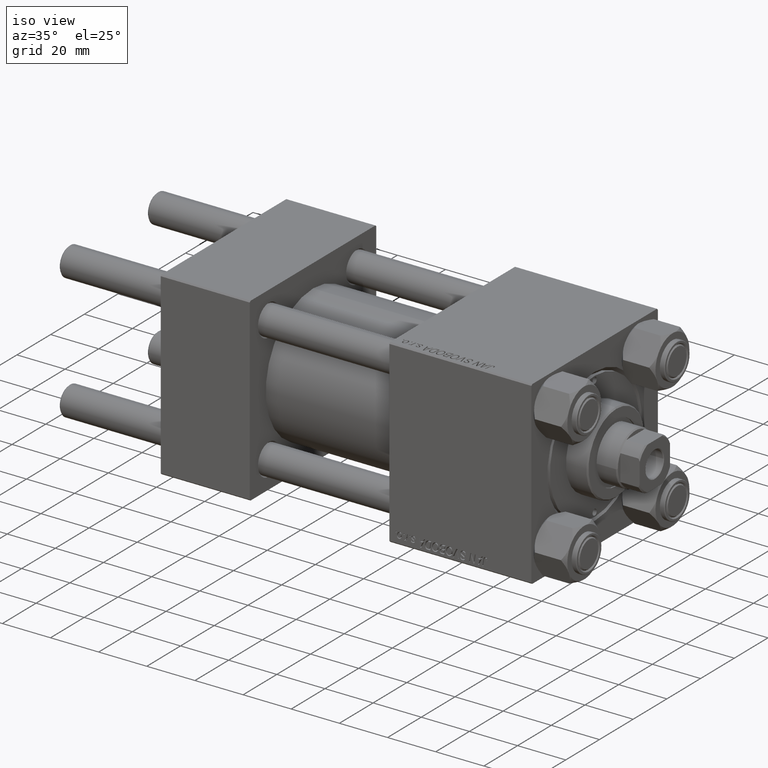
[diagram: clean part render]
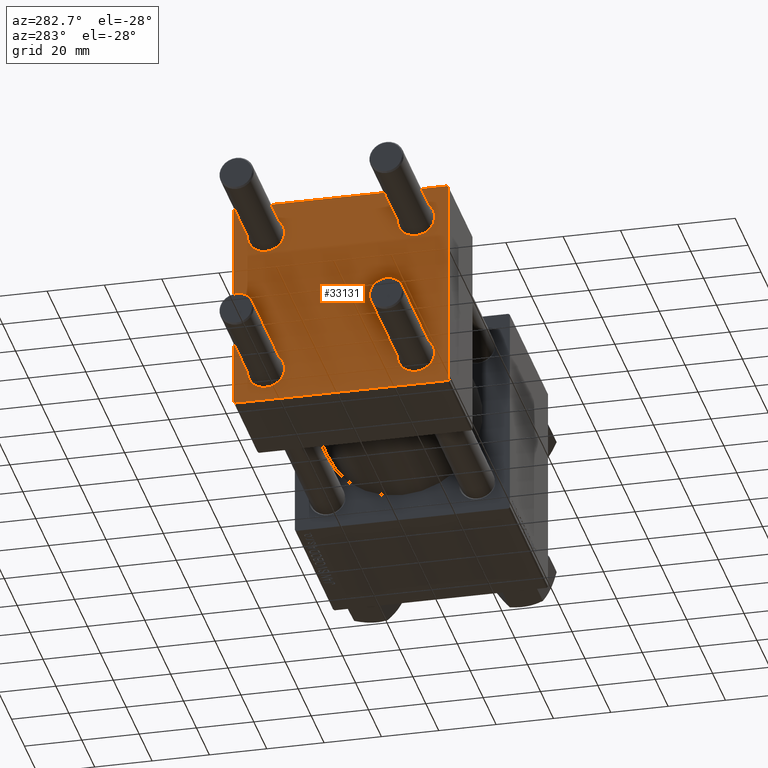
[diagram: tour spotlight — one face highlighted and labeled with its STEP entity id]
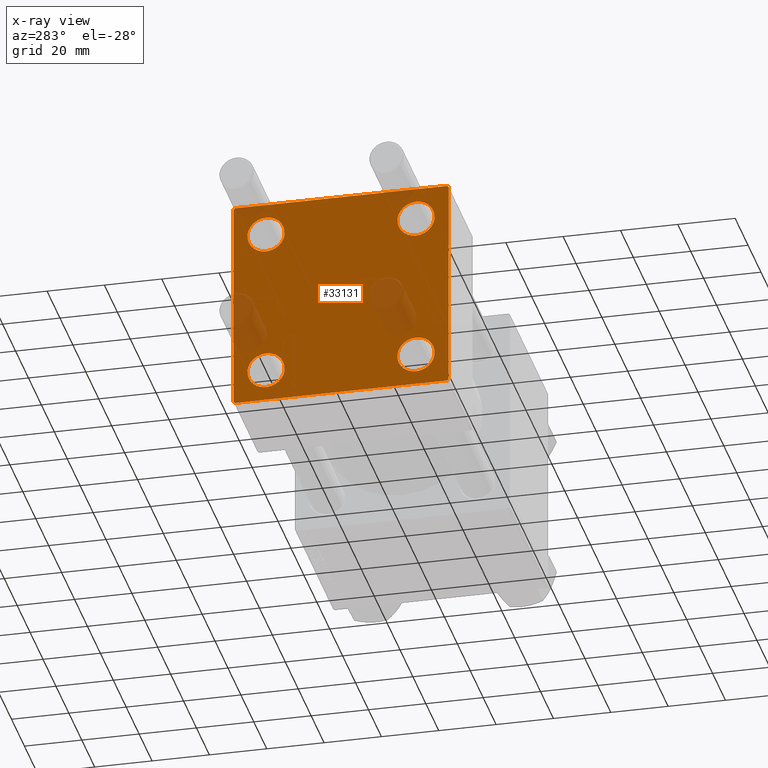
[diagram: x-ray of the same camera — body ghosted, this tour face saturated]
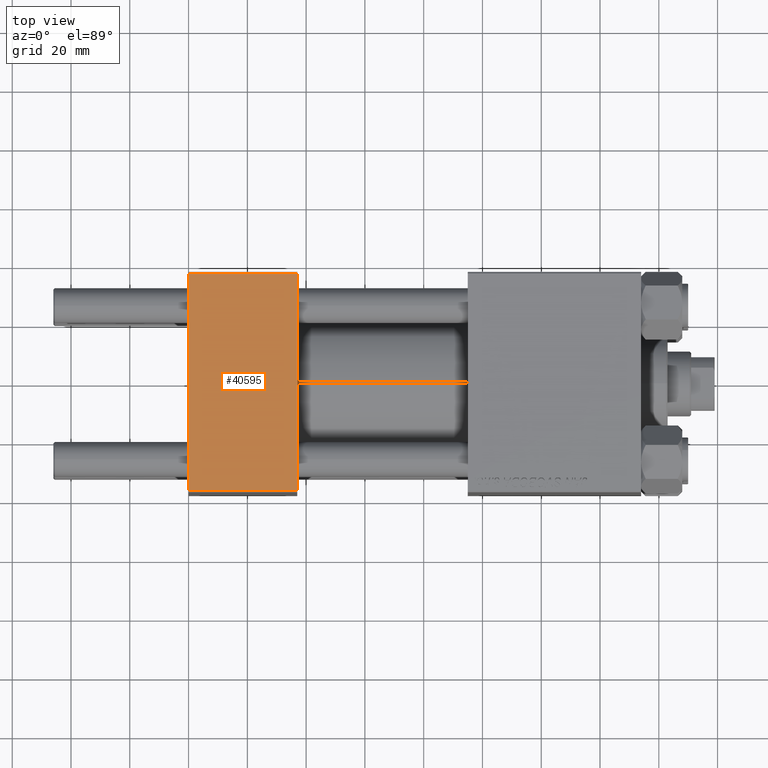
[diagram: tour spotlight — one face highlighted and labeled with its STEP entity id]
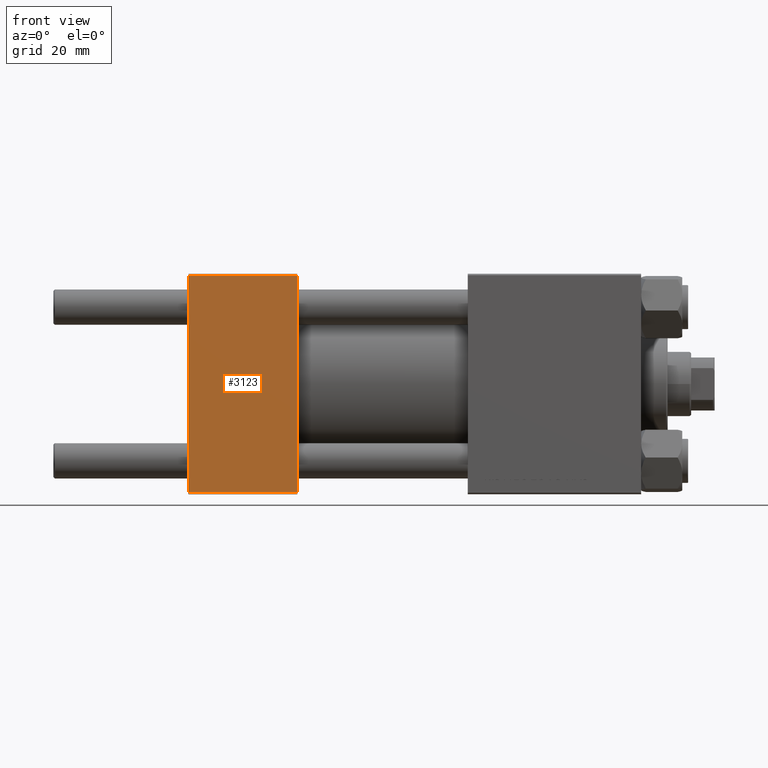
[diagram: tour spotlight — one face highlighted and labeled with its STEP entity id]
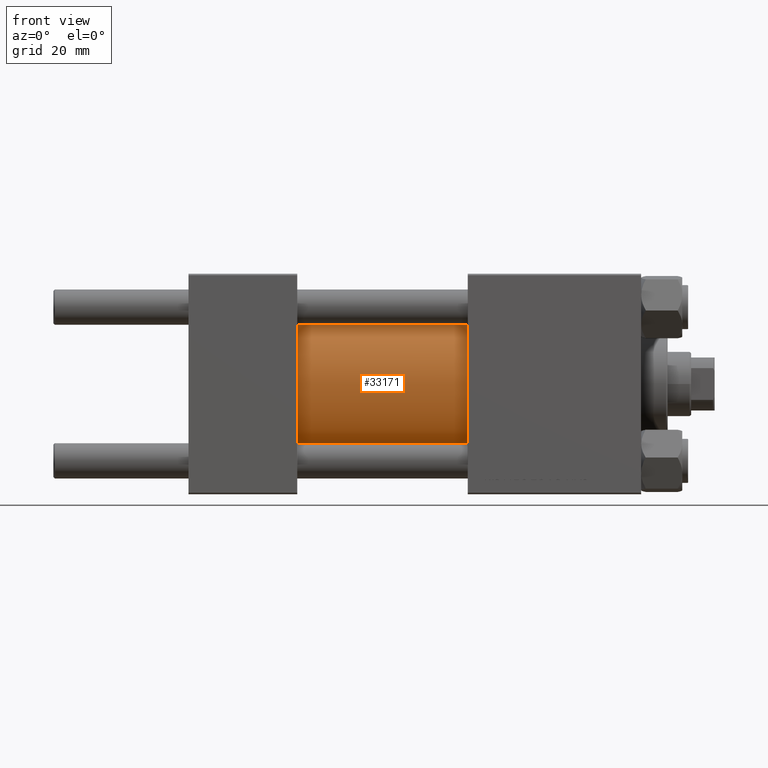
[diagram: tour spotlight — one face highlighted and labeled with its STEP entity id]
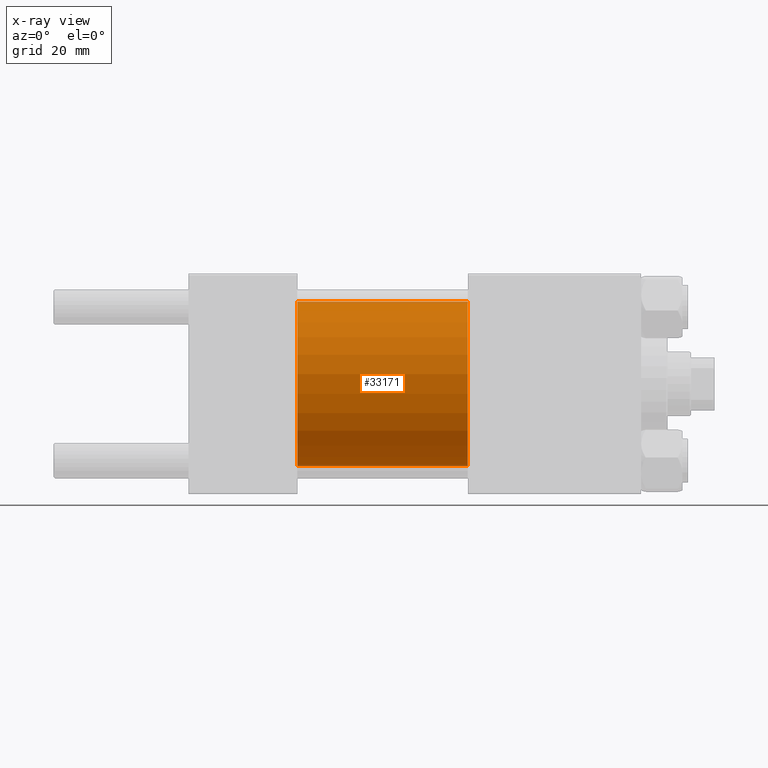
[diagram: x-ray of the same camera — body ghosted, this tour face saturated]
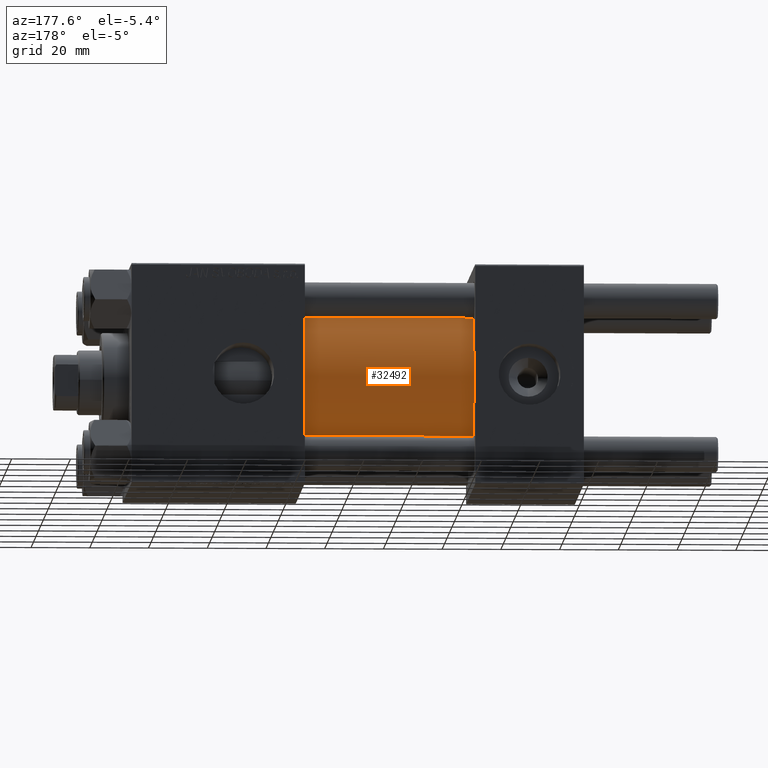
[diagram: tour spotlight — one face highlighted and labeled with its STEP entity id]
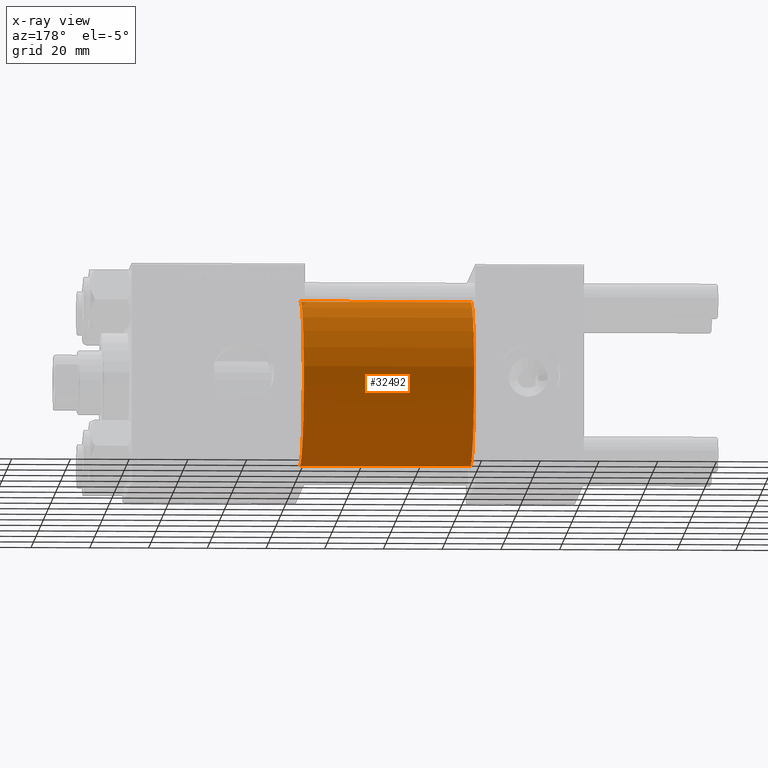
[diagram: x-ray of the same camera — body ghosted, this tour face saturated]
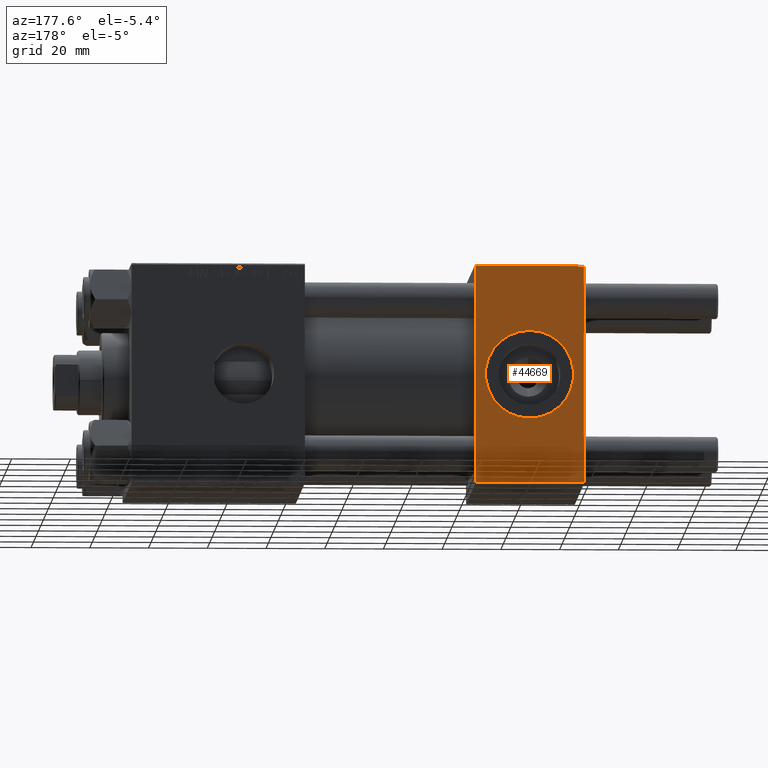
[diagram: tour spotlight — one face highlighted and labeled with its STEP entity id]
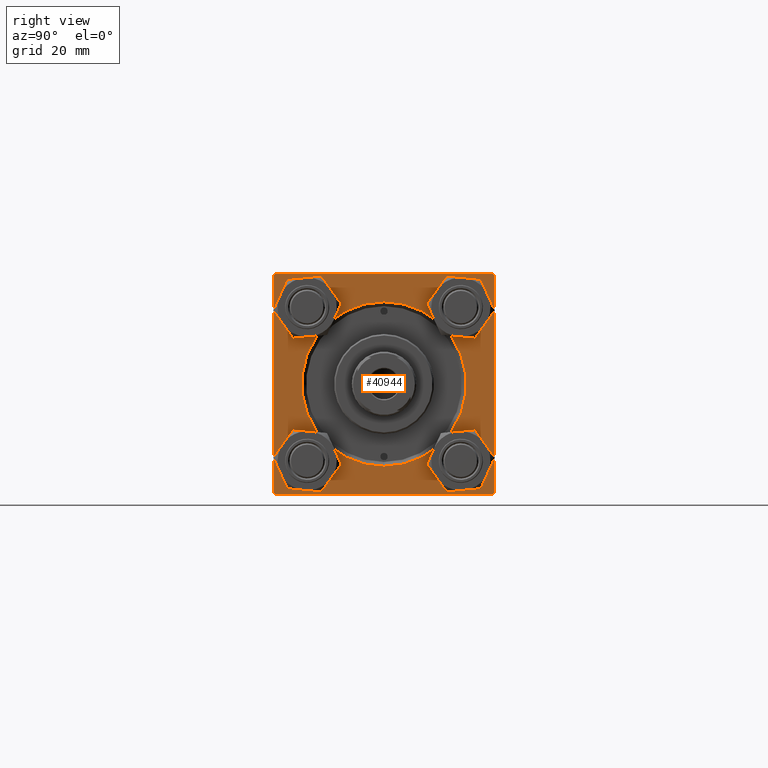
[diagram: tour spotlight — one face highlighted and labeled with its STEP entity id]
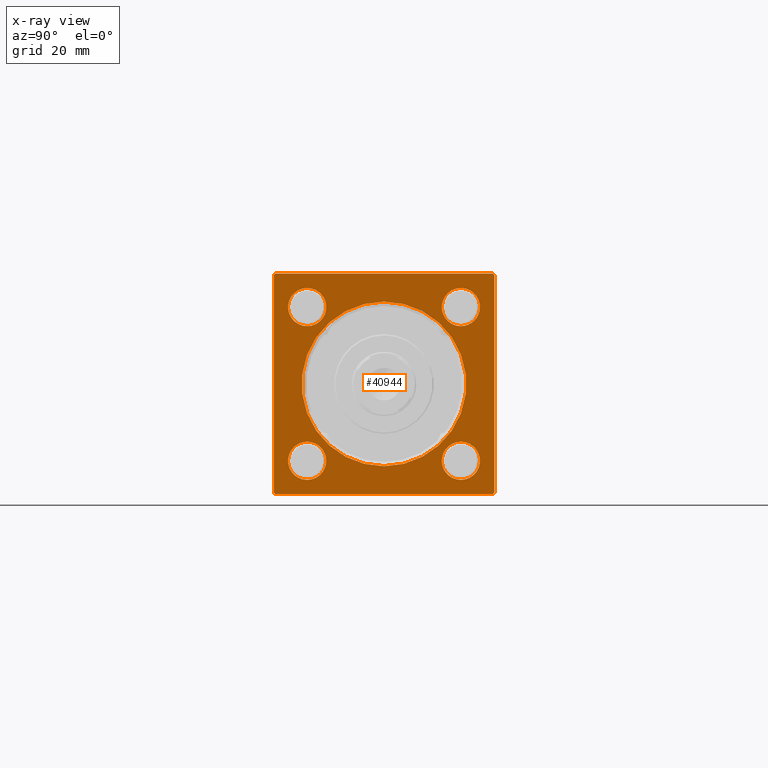
[diagram: x-ray of the same camera — body ghosted, this tour face saturated]
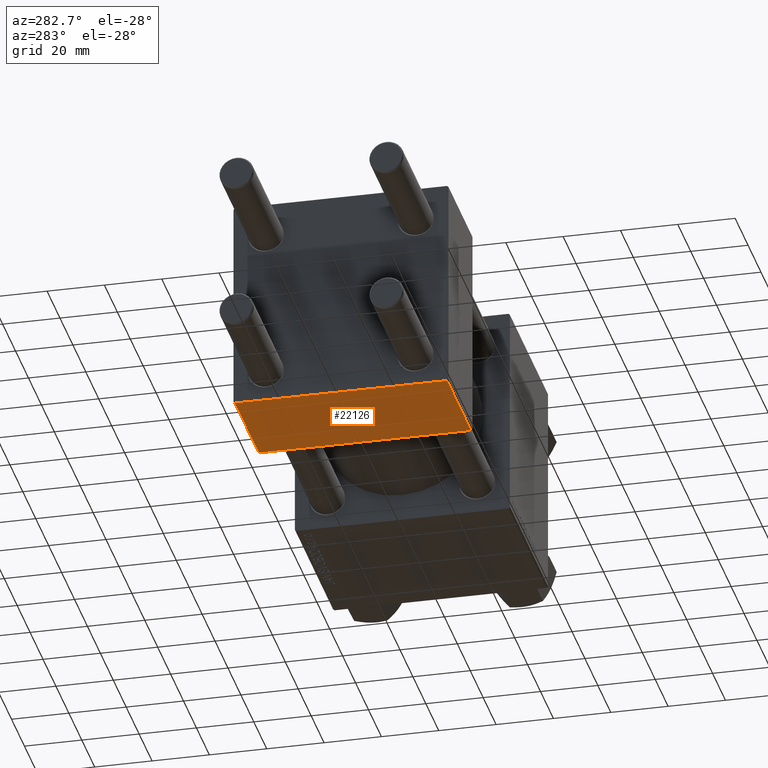
[diagram: tour spotlight — one face highlighted and labeled with its STEP entity id]
A machine part: a face-by-face anatomy tour. The part has 1141 B-rep faces; the first image is the clean iso view, then the 8 largest visible faces are spotlighted one at a time (largest first), each with its STEP entity span.

Face 1 — auxiliary view, entity #33131. An x-ray twin of the same camera follows (body ghosted, this face saturated) — the face is partly hidden behind the body. In plain terms, the highlighted planar face has unit normal (-1, 0, 0).
Definition (entity closure, byte-faithful):
#65 = CARTESIAN_POINT ( 'NONE',  ( 0.000000000000000000, -37.50000000000000000, -37.00000000000003553 ) ) ;
#173 = DIRECTION ( 'NONE',  ( -0.000000000000000000, 0.7071067811865474617, 0.7071067811865474617 ) ) ;
#293 = LINE ( 'NONE', #11463, #18064 ) ;
#297 = CARTESIAN_POINT ( 'NONE',  ( 0.000000000000000000, 26.14999999999999858, -26.15000000000000213 ) ) ;
#417 = ORIENTED_EDGE ( 'NONE', *, *, #34638, .T. ) ;
#548 = DIRECTION ( 'NONE',  ( 0.000000000000000000, 0.000000000000000000, 1.000000000000000000 ) ) ;
#692 = LINE ( 'NONE', #29905, #20252 ) ;
#707 = VERTEX_POINT ( 'NONE', #28216 ) ;
#1071 = ORIENTED_EDGE ( 'NONE', *, *, #13535, .T. ) ;
#1564 = CARTESIAN_POINT ( 'NONE',  ( 0.000000000000000000, 36.99999999999999289, 37.50000000000000000 ) ) ;
#1800 = ORIENTED_EDGE ( 'NONE', *, *, #8103, .T. ) ;
#2033 = CARTESIAN_POINT ( 'NONE',  ( 0.000000000000000000, -26.14999999999999147, 19.64999999999999147 ) ) ;
#2629 = EDGE_CURVE ( 'NONE', #42699, #20595, #15639, .T. ) ;
#2630 = DIRECTION ( 'NONE',  ( 0.000000000000000000, 0.000000000000000000, 1.000000000000000000 ) ) ;
#2894 = CARTESIAN_POINT ( 'NONE',  ( 0.000000000000000000, 37.49999999999999289, 37.00000000000000000 ) ) ;
#2962 = ORIENTED_EDGE ( 'NONE', *, *, #11185, .T. ) ;
#3562 = CARTESIAN_POINT ( 'NONE',  ( 0.000000000000000000, -26.14999999999999147, -26.15000000000000924 ) ) ;
#3616 = DIRECTION ( 'NONE',  ( 0.000000000000000000, -0.7071067811865524577, 0.7071067811865426878 ) ) ;
#3720 = LINE ( 'NONE', #34090, #47006 ) ;
#4748 = ORIENTED_EDGE ( 'NONE', *, *, #2629, .T. ) ;
#5118 = VERTEX_POINT ( 'NONE', #5332 ) ;
#5174 = CARTESIAN_POINT ( 'NONE',  ( 0.000000000000000000, -37.00000000000000711, 37.49999999999999289 ) ) ;
#5267 = DIRECTION ( 'NONE',  ( 1.000000000000000000, -0.000000000000000000, 0.000000000000000000 ) ) ;
#5332 = CARTESIAN_POINT ( 'NONE',  ( 0.000000000000000000, 36.99999999999997868, -37.50000000000000000 ) ) ;
#5455 = VERTEX_POINT ( 'NONE', #6288 ) ;
#5622 = CARTESIAN_POINT ( 'NONE',  ( 0.000000000000000000, 0.000000000000000000, 0.000000000000000000 ) ) ;
#5742 = DIRECTION ( 'NONE',  ( 0.000000000000000000, 0.7071067811865474617, -0.7071067811865474617 ) ) ;
#5883 = AXIS2_PLACEMENT_3D ( 'NONE', #38276, #34479, #11716 ) ;
#6288 = CARTESIAN_POINT ( 'NONE',  ( 0.000000000000000000, -26.14999999999999147, -32.65000000000002700 ) ) ;
#6425 = DIRECTION ( 'NONE',  ( 1.000000000000000000, -0.000000000000000000, 0.000000000000000000 ) ) ;
#7632 = CIRCLE ( 'NONE', #27848, 6.500000000000023093 ) ;
#7780 = DIRECTION ( 'NONE',  ( 0.000000000000000000, 0.000000000000000000, -1.000000000000000000 ) ) ;
#8015 = AXIS2_PLACEMENT_3D ( 'NONE', #297, #38279, #548 ) ;
#8103 = EDGE_CURVE ( 'NONE', #5118, #48887, #3720, .T. ) ;
#8224 = ORIENTED_EDGE ( 'NONE', *, *, #11249, .T. ) ;
#8371 = CIRCLE ( 'NONE', #31035, 6.500000000000023093 ) ;
#8563 = AXIS2_PLACEMENT_3D ( 'NONE', #48291, #5267, #43976 ) ;
#8759 = CARTESIAN_POINT ( 'NONE',  ( 0.000000000000000000, 37.49999999999999289, 37.50000000000000000 ) ) ;
#8923 = DIRECTION ( 'NONE',  ( -0.000000000000000000, 0.000000000000000000, 1.000000000000000000 ) ) ;
#9126 = ORIENTED_EDGE ( 'NONE', *, *, #40375, .T. ) ;
#9674 = DIRECTION ( 'NONE',  ( 0.000000000000000000, 0.000000000000000000, 1.000000000000000000 ) ) ;
#10194 = CARTESIAN_POINT ( 'NONE',  ( 0.000000000000000000, 26.14999999999999858, 26.15000000000000213 ) ) ;
#10260 = EDGE_LOOP ( 'NONE', ( #8224, #50051 ) ) ;
#11163 = DIRECTION ( 'NONE',  ( 0.000000000000000000, 0.000000000000000000, 1.000000000000000000 ) ) ;
#11185 = EDGE_CURVE ( 'NONE', #48887, #39481, #293, .T. ) ;
#11248 = VERTEX_POINT ( 'NONE', #26642 ) ;
#11249 = EDGE_CURVE ( 'NONE', #30567, #28918, #37439, .T. ) ;
#11463 = CARTESIAN_POINT ( 'NONE',  ( 0.000000000000000000, -37.24999999999975842, -37.25000000000027001 ) ) ;
#11716 = DIRECTION ( 'NONE',  ( 0.000000000000000000, 0.000000000000000000, 1.000000000000000000 ) ) ;
#13233 = VECTOR ( 'NONE', #50078, 1000.000000000000000 ) ;
#13535 = EDGE_CURVE ( 'NONE', #34894, #40268, #8371, .T. ) ;
#14255 = EDGE_CURVE ( 'NONE', #707, #5455, #14892, .T. ) ;
#14503 = CARTESIAN_POINT ( 'NONE',  ( 0.000000000000000000, 26.14999999999999858, 19.64999999999998437 ) ) ;
#14745 = DIRECTION ( 'NONE',  ( 0.000000000000000000, -1.000000000000000000, -9.251858538542971581E-17 ) ) ;
#14892 = CIRCLE ( 'NONE', #18934, 6.500000000000015987 ) ;
#14978 = DIRECTION ( 'NONE',  ( 1.000000000000000000, -0.000000000000000000, 0.000000000000000000 ) ) ;
#15639 = LINE ( 'NONE', #8759, #46011 ) ;
#15880 = CARTESIAN_POINT ( 'NONE',  ( 0.000000000000000000, 37.24999999999998579, -37.24999999999998579 ) ) ;
#16152 = EDGE_LOOP ( 'NONE', ( #4748, #9126, #1800, #2962, #48292, #20776, #44721, #21932 ) ) ;
#16387 = CARTESIAN_POINT ( 'NONE',  ( -0.000000000000000000, -37.25000000000000000, 37.25000000000000000 ) ) ;
#16549 = FACE_BOUND ( 'NONE', #18717, .T. ) ;
#17844 = EDGE_CURVE ( 'NONE', #11248, #39481, #34876, .T. ) ;
#18009 = DIRECTION ( 'NONE',  ( 0.000000000000000000, 0.000000000000000000, 1.000000000000000000 ) ) ;
#18064 = VECTOR ( 'NONE', #3616, 1000.000000000000000 ) ;
#18717 = EDGE_LOOP ( 'NONE', ( #417, #1071 ) ) ;
#18934 = AXIS2_PLACEMENT_3D ( 'NONE', #3562, #14978, #11163 ) ;
#19250 = CARTESIAN_POINT ( 'NONE',  ( 0.000000000000000000, -26.14999999999999147, 26.15000000000000924 ) ) ;
#19675 = DIRECTION ( 'NONE',  ( -0.000000000000000000, -0.7071067811865474617, -0.7071067811865474617 ) ) ;
#19948 = CARTESIAN_POINT ( 'NONE',  ( 0.000000000000000000, 26.14999999999999858, -19.64999999999998792 ) ) ;
#20252 = VECTOR ( 'NONE', #14745, 1000.000000000000000 ) ;
#20595 = VERTEX_POINT ( 'NONE', #36223 ) ;
#20709 = VERTEX_POINT ( 'NONE', #1564 ) ;
#20776 = ORIENTED_EDGE ( 'NONE', *, *, #41463, .T. ) ;
#21492 = CIRCLE ( 'NONE', #8563, 6.500000000000015987 ) ;
#21633 = VERTEX_POINT ( 'NONE', #14503 ) ;
#21798 = CARTESIAN_POINT ( 'NONE',  ( 0.000000000000000000, -26.14999999999999147, 26.15000000000000924 ) ) ;
#21932 = ORIENTED_EDGE ( 'NONE', *, *, #47621, .T. ) ;
#22362 = AXIS2_PLACEMENT_3D ( 'NONE', #21798, #36700, #18009 ) ;
#23171 = VERTEX_POINT ( 'NONE', #33146 ) ;
#23878 = FACE_OUTER_BOUND ( 'NONE', #16152, .T. ) ;
#23962 = LINE ( 'NONE', #15880, #27337 ) ;
#24863 = FACE_BOUND ( 'NONE', #47568, .T. ) ;
#25477 = ORIENTED_EDGE ( 'NONE', *, *, #14255, .T. ) ;
#26440 = EDGE_CURVE ( 'NONE', #23171, #21633, #7632, .T. ) ;
#26642 = CARTESIAN_POINT ( 'NONE',  ( 0.000000000000000000, -37.50000000000000711, 36.99999999999999289 ) ) ;
#27337 = VECTOR ( 'NONE', #19675, 1000.000000000000114 ) ;
#27422 = EDGE_LOOP ( 'NONE', ( #25477, #33956 ) ) ;
#27848 = AXIS2_PLACEMENT_3D ( 'NONE', #10194, #45118, #9674 ) ;
#27907 = FACE_BOUND ( 'NONE', #10260, .T. ) ;
#28059 = DIRECTION ( 'NONE',  ( 1.000000000000000000, -0.000000000000000000, 0.000000000000000000 ) ) ;
#28216 = CARTESIAN_POINT ( 'NONE',  ( 0.000000000000000000, -26.14999999999999147, -19.64999999999999503 ) ) ;
#28918 = VERTEX_POINT ( 'NONE', #30271 ) ;
#29101 = VECTOR ( 'NONE', #5742, 1000.000000000000114 ) ;
#29905 = CARTESIAN_POINT ( 'NONE',  ( 0.000000000000000000, 37.49999999999999289, 37.50000000000000000 ) ) ;
#30055 = DIRECTION ( 'NONE',  ( 0.000000000000000000, -1.000000000000000000, -9.251858538542972814E-17 ) ) ;
#30271 = CARTESIAN_POINT ( 'NONE',  ( 0.000000000000000000, 26.14999999999999858, -32.65000000000001990 ) ) ;
#30567 = VERTEX_POINT ( 'NONE', #19948 ) ;
#30772 = VERTEX_POINT ( 'NONE', #5174 ) ;
#31035 = AXIS2_PLACEMENT_3D ( 'NONE', #19250, #28059, #34652 ) ;
#32377 = ORIENTED_EDGE ( 'NONE', *, *, #26440, .T. ) ;
#33131 = ADVANCED_FACE ( 'NONE', ( #16549, #35491, #27907, #24863, #23878 ), #47148, .T. ) ;
#33146 = CARTESIAN_POINT ( 'NONE',  ( 0.000000000000000000, 26.14999999999999858, 32.65000000000002700 ) ) ;
#33457 = EDGE_CURVE ( 'NONE', #5455, #707, #21492, .T. ) ;
#33956 = ORIENTED_EDGE ( 'NONE', *, *, #33457, .T. ) ;
#34090 = CARTESIAN_POINT ( 'NONE',  ( 0.000000000000000000, 37.49999999999999289, -37.50000000000000000 ) ) ;
#34479 = DIRECTION ( 'NONE',  ( 1.000000000000000000, -0.000000000000000000, 0.000000000000000000 ) ) ;
#34638 = EDGE_CURVE ( 'NONE', #40268, #34894, #37694, .T. ) ;
#34652 = DIRECTION ( 'NONE',  ( 0.000000000000000000, 0.000000000000000000, 1.000000000000000000 ) ) ;
#34770 = AXIS2_PLACEMENT_3D ( 'NONE', #41082, #6425, #2630 ) ;
#34876 = LINE ( 'NONE', #42475, #13233 ) ;
#34894 = VERTEX_POINT ( 'NONE', #2033 ) ;
#35491 = FACE_BOUND ( 'NONE', #27422, .T. ) ;
#35973 = AXIS2_PLACEMENT_3D ( 'NONE', #5622, #43341, #8923 ) ;
#36223 = CARTESIAN_POINT ( 'NONE',  ( 0.000000000000000000, 37.49999999999999289, -36.99999999999998579 ) ) ;
#36457 = CARTESIAN_POINT ( 'NONE',  ( 0.000000000000000000, -26.14999999999999147, 32.65000000000003411 ) ) ;
#36700 = DIRECTION ( 'NONE',  ( 1.000000000000000000, -0.000000000000000000, 0.000000000000000000 ) ) ;
#37248 = CIRCLE ( 'NONE', #34770, 6.500000000000023093 ) ;
#37439 = CIRCLE ( 'NONE', #5883, 6.500000000000015987 ) ;
#37694 = CIRCLE ( 'NONE', #22362, 6.500000000000023093 ) ;
#38276 = CARTESIAN_POINT ( 'NONE',  ( 0.000000000000000000, 26.14999999999999858, -26.15000000000000213 ) ) ;
#38279 = DIRECTION ( 'NONE',  ( 1.000000000000000000, -0.000000000000000000, 0.000000000000000000 ) ) ;
#39376 = LINE ( 'NONE', #16387, #44346 ) ;
#39481 = VERTEX_POINT ( 'NONE', #65 ) ;
#40268 = VERTEX_POINT ( 'NONE', #36457 ) ;
#40375 = EDGE_CURVE ( 'NONE', #20595, #5118, #23962, .T. ) ;
#40405 = LINE ( 'NONE', #44208, #29101 ) ;
#40836 = ORIENTED_EDGE ( 'NONE', *, *, #49304, .T. ) ;
#41082 = CARTESIAN_POINT ( 'NONE',  ( 0.000000000000000000, 26.14999999999999858, 26.15000000000000213 ) ) ;
#41463 = EDGE_CURVE ( 'NONE', #11248, #30772, #39376, .T. ) ;
#42140 = EDGE_CURVE ( 'NONE', #28918, #30567, #42755, .T. ) ;
#42475 = CARTESIAN_POINT ( 'NONE',  ( 0.000000000000000000, -37.50000000000000711, 37.49999999999999289 ) ) ;
#42699 = VERTEX_POINT ( 'NONE', #2894 ) ;
#42755 = CIRCLE ( 'NONE', #8015, 6.500000000000015987 ) ;
#43341 = DIRECTION ( 'NONE',  ( -1.000000000000000000, 0.000000000000000000, -0.000000000000000000 ) ) ;
#43976 = DIRECTION ( 'NONE',  ( 0.000000000000000000, 0.000000000000000000, 1.000000000000000000 ) ) ;
#44208 = CARTESIAN_POINT ( 'NONE',  ( 0.000000000000000000, 37.24999999999999289, 37.24999999999999289 ) ) ;
#44346 = VECTOR ( 'NONE', #173, 1000.000000000000114 ) ;
#44721 = ORIENTED_EDGE ( 'NONE', *, *, #44729, .F. ) ;
#44729 = EDGE_CURVE ( 'NONE', #20709, #30772, #692, .T. ) ;
#45118 = DIRECTION ( 'NONE',  ( 1.000000000000000000, -0.000000000000000000, 0.000000000000000000 ) ) ;
#46011 = VECTOR ( 'NONE', #7780, 1000.000000000000000 ) ;
#46639 = CARTESIAN_POINT ( 'NONE',  ( 0.000000000000000000, -37.00000000000002132, -37.50000000000000711 ) ) ;
#47006 = VECTOR ( 'NONE', #30055, 1000.000000000000000 ) ;
#47148 = PLANE ( 'NONE',  #35973 ) ;
#47568 = EDGE_LOOP ( 'NONE', ( #32377, #40836 ) ) ;
#47621 = EDGE_CURVE ( 'NONE', #20709, #42699, #40405, .T. ) ;
#48291 = CARTESIAN_POINT ( 'NONE',  ( 0.000000000000000000, -26.14999999999999147, -26.15000000000000924 ) ) ;
#48292 = ORIENTED_EDGE ( 'NONE', *, *, #17844, .F. ) ;
#48887 = VERTEX_POINT ( 'NONE', #46639 ) ;
#49304 = EDGE_CURVE ( 'NONE', #21633, #23171, #37248, .T. ) ;
#50051 = ORIENTED_EDGE ( 'NONE', *, *, #42140, .T. ) ;
#50078 = DIRECTION ( 'NONE',  ( 0.000000000000000000, 9.251858538542971581E-17, -1.000000000000000000 ) ) ;

Face 2 — top view, entity #40595. In plain terms, the highlighted planar face has unit normal (0, 0, -1).
Definition (entity closure, byte-faithful):
#282 = DIRECTION ( 'NONE',  ( 1.000000000000000000, 0.000000000000000000, 0.000000000000000000 ) ) ;
#692 = LINE ( 'NONE', #29905, #20252 ) ;
#1564 = CARTESIAN_POINT ( 'NONE',  ( 0.000000000000000000, 36.99999999999999289, 37.50000000000000000 ) ) ;
#1924 = CARTESIAN_POINT ( 'NONE',  ( 37.00000000000000000, 37.49999999999999289, 37.50000000000000000 ) ) ;
#5174 = CARTESIAN_POINT ( 'NONE',  ( 0.000000000000000000, -37.00000000000000711, 37.49999999999999289 ) ) ;
#7235 = VECTOR ( 'NONE', #25778, 1000.000000000000000 ) ;
#9010 = FACE_OUTER_BOUND ( 'NONE', #17029, .T. ) ;
#9462 = DIRECTION ( 'NONE',  ( -1.000000000000000000, 0.000000000000000000, 0.000000000000000000 ) ) ;
#11719 = VECTOR ( 'NONE', #282, 1000.000000000000000 ) ;
#12000 = AXIS2_PLACEMENT_3D ( 'NONE', #1924, #43423, #28746 ) ;
#14745 = DIRECTION ( 'NONE',  ( 0.000000000000000000, -1.000000000000000000, -9.251858538542971581E-17 ) ) ;
#15263 = LINE ( 'NONE', #45864, #11719 ) ;
#16431 = ORIENTED_EDGE ( 'NONE', *, *, #29008, .T. ) ;
#17015 = CARTESIAN_POINT ( 'NONE',  ( 37.00000000000000000, 36.99999999999999289, 37.50000000000000000 ) ) ;
#17029 = EDGE_LOOP ( 'NONE', ( #30760, #45762, #37469, #16431 ) ) ;
#19581 = EDGE_CURVE ( 'NONE', #30772, #25700, #15263, .T. ) ;
#20032 = CARTESIAN_POINT ( 'NONE',  ( 37.00000000000000000, -37.00000000000000711, 37.49999999999999289 ) ) ;
#20252 = VECTOR ( 'NONE', #14745, 1000.000000000000000 ) ;
#20709 = VERTEX_POINT ( 'NONE', #1564 ) ;
#21433 = PLANE ( 'NONE',  #12000 ) ;
#24655 = LINE ( 'NONE', #28441, #49770 ) ;
#25700 = VERTEX_POINT ( 'NONE', #20032 ) ;
#25778 = DIRECTION ( 'NONE',  ( 0.000000000000000000, -1.000000000000000000, -9.251858538542971581E-17 ) ) ;
#28441 = CARTESIAN_POINT ( 'NONE',  ( 0.000000000000000000, 36.99999999999999289, 37.50000000000000000 ) ) ;
#28746 = DIRECTION ( 'NONE',  ( 0.000000000000000000, 1.000000000000000000, 9.251858538542971581E-17 ) ) ;
#29008 = EDGE_CURVE ( 'NONE', #49503, #20709, #24655, .T. ) ;
#29571 = LINE ( 'NONE', #45014, #7235 ) ;
#29905 = CARTESIAN_POINT ( 'NONE',  ( 0.000000000000000000, 37.49999999999999289, 37.50000000000000000 ) ) ;
#30760 = ORIENTED_EDGE ( 'NONE', *, *, #44729, .T. ) ;
#30772 = VERTEX_POINT ( 'NONE', #5174 ) ;
#37469 = ORIENTED_EDGE ( 'NONE', *, *, #43107, .F. ) ;
#40595 = ADVANCED_FACE ( 'NONE', ( #9010 ), #21433, .F. ) ;
#43107 = EDGE_CURVE ( 'NONE', #49503, #25700, #29571, .T. ) ;
#43423 = DIRECTION ( 'NONE',  ( 0.000000000000000000, 9.251858538542971581E-17, -1.000000000000000000 ) ) ;
#44729 = EDGE_CURVE ( 'NONE', #20709, #30772, #692, .T. ) ;
#45014 = CARTESIAN_POINT ( 'NONE',  ( 37.00000000000000000, 37.49999999999999289, 37.50000000000000000 ) ) ;
#45762 = ORIENTED_EDGE ( 'NONE', *, *, #19581, .T. ) ;
#45864 = CARTESIAN_POINT ( 'NONE',  ( 37.00000000000000000, -37.00000000000000711, 37.49999999999999289 ) ) ;
#49503 = VERTEX_POINT ( 'NONE', #17015 ) ;
#49770 = VECTOR ( 'NONE', #9462, 1000.000000000000000 ) ;

Face 3 — front view, entity #3123. In plain terms, the highlighted planar face has unit normal (0, 1, 0).
Definition (entity closure, byte-faithful):
#65 = CARTESIAN_POINT ( 'NONE',  ( 0.000000000000000000, -37.50000000000000000, -37.00000000000003553 ) ) ;
#2468 = VECTOR ( 'NONE', #38541, 1000.000000000000000 ) ;
#3123 = ADVANCED_FACE ( 'NONE', ( #38993 ), #42312, .F. ) ;
#4341 = DIRECTION ( 'NONE',  ( -0.000000000000000000, 1.000000000000000000, 9.251858538542971581E-17 ) ) ;
#5722 = CARTESIAN_POINT ( 'NONE',  ( 37.00000000000000000, -37.50000000000000711, 36.99999999999999289 ) ) ;
#9849 = ORIENTED_EDGE ( 'NONE', *, *, #43602, .T. ) ;
#11248 = VERTEX_POINT ( 'NONE', #26642 ) ;
#13233 = VECTOR ( 'NONE', #50078, 1000.000000000000000 ) ;
#13869 = VERTEX_POINT ( 'NONE', #5722 ) ;
#16163 = VECTOR ( 'NONE', #47822, 1000.000000000000000 ) ;
#17844 = EDGE_CURVE ( 'NONE', #11248, #39481, #34876, .T. ) ;
#18031 = VERTEX_POINT ( 'NONE', #49051 ) ;
#18911 = ORIENTED_EDGE ( 'NONE', *, *, #17844, .T. ) ;
#19110 = EDGE_CURVE ( 'NONE', #13869, #18031, #40125, .T. ) ;
#19576 = LINE ( 'NONE', #23134, #2468 ) ;
#20920 = DIRECTION ( 'NONE',  ( 0.000000000000000000, 9.251858538542971581E-17, -1.000000000000000000 ) ) ;
#23134 = CARTESIAN_POINT ( 'NONE',  ( 37.00000000000000000, -37.50000000000000711, 36.99999999999999289 ) ) ;
#23842 = DIRECTION ( 'NONE',  ( 0.000000000000000000, -9.251858538542971581E-17, 1.000000000000000000 ) ) ;
#26642 = CARTESIAN_POINT ( 'NONE',  ( 0.000000000000000000, -37.50000000000000711, 36.99999999999999289 ) ) ;
#27808 = VECTOR ( 'NONE', #20920, 1000.000000000000000 ) ;
#30439 = ORIENTED_EDGE ( 'NONE', *, *, #19110, .F. ) ;
#34876 = LINE ( 'NONE', #42475, #13233 ) ;
#38541 = DIRECTION ( 'NONE',  ( -1.000000000000000000, 0.000000000000000000, 0.000000000000000000 ) ) ;
#38925 = CARTESIAN_POINT ( 'NONE',  ( 37.00000000000000000, -37.50000000000000711, 37.49999999999999289 ) ) ;
#38993 = FACE_OUTER_BOUND ( 'NONE', #47873, .T. ) ;
#39481 = VERTEX_POINT ( 'NONE', #65 ) ;
#40125 = LINE ( 'NONE', #38925, #27808 ) ;
#42063 = CARTESIAN_POINT ( 'NONE',  ( 37.00000000000000000, -37.50000000000000711, 37.49999999999999289 ) ) ;
#42312 = PLANE ( 'NONE',  #46820 ) ;
#42475 = CARTESIAN_POINT ( 'NONE',  ( 0.000000000000000000, -37.50000000000000711, 37.49999999999999289 ) ) ;
#42632 = ORIENTED_EDGE ( 'NONE', *, *, #48040, .T. ) ;
#43602 = EDGE_CURVE ( 'NONE', #39481, #18031, #43757, .T. ) ;
#43757 = LINE ( 'NONE', #44257, #16163 ) ;
#44257 = CARTESIAN_POINT ( 'NONE',  ( 37.00000000000000000, -37.50000000000000000, -37.00000000000003553 ) ) ;
#46820 = AXIS2_PLACEMENT_3D ( 'NONE', #42063, #4341, #23842 ) ;
#47822 = DIRECTION ( 'NONE',  ( 1.000000000000000000, 0.000000000000000000, 0.000000000000000000 ) ) ;
#47873 = EDGE_LOOP ( 'NONE', ( #18911, #9849, #30439, #42632 ) ) ;
#48040 = EDGE_CURVE ( 'NONE', #13869, #11248, #19576, .T. ) ;
#49051 = CARTESIAN_POINT ( 'NONE',  ( 37.00000000000000000, -37.50000000000000000, -37.00000000000003553 ) ) ;
#50078 = DIRECTION ( 'NONE',  ( 0.000000000000000000, 9.251858538542971581E-17, -1.000000000000000000 ) ) ;

Face 4 — front view, entity #33171. An x-ray twin of the same camera follows (body ghosted, this face saturated) — the face is partly hidden behind the body. In plain terms, the highlighted cylindrical surface (partial cylindrical patch) has radius 28 mm, axis along (-1, -0, -0).
Definition (entity closure, byte-faithful):
#1319 = LINE ( 'NONE', #28375, #47722 ) ;
#2340 = DIRECTION ( 'NONE',  ( 0.000000000000000000, 0.000000000000000000, 1.000000000000000000 ) ) ;
#2760 = ORIENTED_EDGE ( 'NONE', *, *, #7914, .T. ) ;
#3227 = AXIS2_PLACEMENT_3D ( 'NONE', #33000, #28195, #5177 ) ;
#4155 = AXIS2_PLACEMENT_3D ( 'NONE', #42718, #23512, #43720 ) ;
#5177 = DIRECTION ( 'NONE',  ( 0.000000000000000000, 0.000000000000000000, -1.000000000000000000 ) ) ;
#5594 = DIRECTION ( 'NONE',  ( -1.000000000000000000, -0.000000000000000000, -0.000000000000000000 ) ) ;
#7914 = EDGE_CURVE ( 'NONE', #38913, #29591, #17113, .T. ) ;
#8278 = DIRECTION ( 'NONE',  ( -1.000000000000000000, -0.000000000000000000, -0.000000000000000000 ) ) ;
#9032 = CARTESIAN_POINT ( 'NONE',  ( 37.00000000000000000, 0.000000000000000000, 28.00000000000000000 ) ) ;
#10190 = DIRECTION ( 'NONE',  ( -1.000000000000000000, -0.000000000000000000, -0.000000000000000000 ) ) ;
#17113 = CIRCLE ( 'NONE', #4155, 28.00000000000000000 ) ;
#17963 = CARTESIAN_POINT ( 'NONE',  ( 37.00000000000000000, 3.429011037612588487E-15, -28.00000000000000000 ) ) ;
#20594 = FACE_OUTER_BOUND ( 'NONE', #48512, .T. ) ;
#23512 = DIRECTION ( 'NONE',  ( 1.000000000000000000, -0.000000000000000000, 0.000000000000000000 ) ) ;
#24955 = CARTESIAN_POINT ( 'NONE',  ( 95.00000000000000000, 0.000000000000000000, 28.00000000000000000 ) ) ;
#27510 = CARTESIAN_POINT ( 'NONE',  ( 95.00000000000000000, 3.429011037612588487E-15, -28.00000000000000000 ) ) ;
#28142 = CARTESIAN_POINT ( 'NONE',  ( 95.00000000000000000, 3.429011037612588487E-15, -28.00000000000000000 ) ) ;
#28195 = DIRECTION ( 'NONE',  ( 1.000000000000000000, 0.000000000000000000, 0.000000000000000000 ) ) ;
#28266 = VERTEX_POINT ( 'NONE', #24955 ) ;
#28375 = CARTESIAN_POINT ( 'NONE',  ( 95.00000000000000000, 0.000000000000000000, 28.00000000000000000 ) ) ;
#28571 = ORIENTED_EDGE ( 'NONE', *, *, #49483, .T. ) ;
#28658 = EDGE_CURVE ( 'NONE', #48074, #29591, #31065, .T. ) ;
#29591 = VERTEX_POINT ( 'NONE', #17963 ) ;
#29878 = CIRCLE ( 'NONE', #3227, 28.00000000000000000 ) ;
#31065 = LINE ( 'NONE', #27510, #36819 ) ;
#32474 = ORIENTED_EDGE ( 'NONE', *, *, #28658, .F. ) ;
#33000 = CARTESIAN_POINT ( 'NONE',  ( 95.00000000000000000, 0.000000000000000000, 0.000000000000000000 ) ) ;
#33171 = ADVANCED_FACE ( 'NONE', ( #20594 ), #43835, .T. ) ;
#36819 = VECTOR ( 'NONE', #8278, 1000.000000000000000 ) ;
#38913 = VERTEX_POINT ( 'NONE', #9032 ) ;
#40308 = ORIENTED_EDGE ( 'NONE', *, *, #46826, .F. ) ;
#42450 = AXIS2_PLACEMENT_3D ( 'NONE', #44859, #10190, #2340 ) ;
#42718 = CARTESIAN_POINT ( 'NONE',  ( 37.00000000000000000, 0.000000000000000000, 0.000000000000000000 ) ) ;
#43720 = DIRECTION ( 'NONE',  ( 0.000000000000000000, 0.000000000000000000, 1.000000000000000000 ) ) ;
#43835 = CYLINDRICAL_SURFACE ( 'NONE', #42450, 28.00000000000000000 ) ;
#44859 = CARTESIAN_POINT ( 'NONE',  ( 95.00000000000000000, 0.000000000000000000, 0.000000000000000000 ) ) ;
#46826 = EDGE_CURVE ( 'NONE', #28266, #48074, #29878, .T. ) ;
#47722 = VECTOR ( 'NONE', #5594, 1000.000000000000000 ) ;
#48074 = VERTEX_POINT ( 'NONE', #28142 ) ;
#48512 = EDGE_LOOP ( 'NONE', ( #32474, #40308, #28571, #2760 ) ) ;
#49483 = EDGE_CURVE ( 'NONE', #28266, #38913, #1319, .T. ) ;

Face 5 — auxiliary view, entity #32492. An x-ray twin of the same camera follows (body ghosted, this face saturated) — the face is partly hidden behind the body. In plain terms, the highlighted cylindrical surface (partial cylindrical patch) has radius 28 mm, axis along (-1, -0, -0).
Definition (entity closure, byte-faithful):
#233 = CARTESIAN_POINT ( 'NONE',  ( 37.00000000000000000, 0.000000000000000000, 0.000000000000000000 ) ) ;
#1319 = LINE ( 'NONE', #28375, #47722 ) ;
#5589 = CIRCLE ( 'NONE', #33890, 28.00000000000000000 ) ;
#5594 = DIRECTION ( 'NONE',  ( -1.000000000000000000, -0.000000000000000000, -0.000000000000000000 ) ) ;
#6056 = EDGE_CURVE ( 'NONE', #29591, #38913, #38051, .T. ) ;
#6424 = CARTESIAN_POINT ( 'NONE',  ( 95.00000000000000000, 0.000000000000000000, 0.000000000000000000 ) ) ;
#8278 = DIRECTION ( 'NONE',  ( -1.000000000000000000, -0.000000000000000000, -0.000000000000000000 ) ) ;
#9032 = CARTESIAN_POINT ( 'NONE',  ( 37.00000000000000000, 0.000000000000000000, 28.00000000000000000 ) ) ;
#10975 = AXIS2_PLACEMENT_3D ( 'NONE', #38851, #30786, #15859 ) ;
#15859 = DIRECTION ( 'NONE',  ( 0.000000000000000000, 0.000000000000000000, 1.000000000000000000 ) ) ;
#16411 = ORIENTED_EDGE ( 'NONE', *, *, #49483, .F. ) ;
#17963 = CARTESIAN_POINT ( 'NONE',  ( 37.00000000000000000, 3.429011037612588487E-15, -28.00000000000000000 ) ) ;
#22802 = DIRECTION ( 'NONE',  ( 1.000000000000000000, -0.000000000000000000, 0.000000000000000000 ) ) ;
#23450 = CYLINDRICAL_SURFACE ( 'NONE', #10975, 28.00000000000000000 ) ;
#24955 = CARTESIAN_POINT ( 'NONE',  ( 95.00000000000000000, 0.000000000000000000, 28.00000000000000000 ) ) ;
#26403 = DIRECTION ( 'NONE',  ( 1.000000000000000000, 0.000000000000000000, 0.000000000000000000 ) ) ;
#27510 = CARTESIAN_POINT ( 'NONE',  ( 95.00000000000000000, 3.429011037612588487E-15, -28.00000000000000000 ) ) ;
#28142 = CARTESIAN_POINT ( 'NONE',  ( 95.00000000000000000, 3.429011037612588487E-15, -28.00000000000000000 ) ) ;
#28266 = VERTEX_POINT ( 'NONE', #24955 ) ;
#28375 = CARTESIAN_POINT ( 'NONE',  ( 95.00000000000000000, 0.000000000000000000, 28.00000000000000000 ) ) ;
#28658 = EDGE_CURVE ( 'NONE', #48074, #29591, #31065, .T. ) ;
#29591 = VERTEX_POINT ( 'NONE', #17963 ) ;
#30786 = DIRECTION ( 'NONE',  ( -1.000000000000000000, -0.000000000000000000, -0.000000000000000000 ) ) ;
#31065 = LINE ( 'NONE', #27510, #36819 ) ;
#32492 = ADVANCED_FACE ( 'NONE', ( #42655 ), #23450, .T. ) ;
#33206 = AXIS2_PLACEMENT_3D ( 'NONE', #233, #22802, #38458 ) ;
#33890 = AXIS2_PLACEMENT_3D ( 'NONE', #6424, #26403, #48691 ) ;
#36819 = VECTOR ( 'NONE', #8278, 1000.000000000000000 ) ;
#37377 = ORIENTED_EDGE ( 'NONE', *, *, #6056, .T. ) ;
#38051 = CIRCLE ( 'NONE', #33206, 28.00000000000000000 ) ;
#38458 = DIRECTION ( 'NONE',  ( 0.000000000000000000, 0.000000000000000000, 1.000000000000000000 ) ) ;
#38527 = ORIENTED_EDGE ( 'NONE', *, *, #42027, .F. ) ;
#38851 = CARTESIAN_POINT ( 'NONE',  ( 95.00000000000000000, 0.000000000000000000, 0.000000000000000000 ) ) ;
#38913 = VERTEX_POINT ( 'NONE', #9032 ) ;
#41528 = EDGE_LOOP ( 'NONE', ( #38527, #45967, #37377, #16411 ) ) ;
#42027 = EDGE_CURVE ( 'NONE', #48074, #28266, #5589, .T. ) ;
#42655 = FACE_OUTER_BOUND ( 'NONE', #41528, .T. ) ;
#45967 = ORIENTED_EDGE ( 'NONE', *, *, #28658, .T. ) ;
#47722 = VECTOR ( 'NONE', #5594, 1000.000000000000000 ) ;
#48074 = VERTEX_POINT ( 'NONE', #28142 ) ;
#48691 = DIRECTION ( 'NONE',  ( 0.000000000000000000, 0.000000000000000000, -1.000000000000000000 ) ) ;
#49483 = EDGE_CURVE ( 'NONE', #28266, #38913, #1319, .T. ) ;

Face 6 — auxiliary view, entity #44669. In plain terms, the highlighted planar face has unit normal (0, 1, 0).
Definition (entity closure, byte-faithful):
#27 = DIRECTION ( 'NONE',  ( 0.000000000000000000, 0.000000000000000000, -1.000000000000000000 ) ) ;
#169 = DIRECTION ( 'NONE',  ( 0.000000000000000000, 0.000000000000000000, 1.000000000000000000 ) ) ;
#1566 = FACE_BOUND ( 'NONE', #10003, .T. ) ;
#2075 = DIRECTION ( 'NONE',  ( 0.000000000000000000, -0.000000000000000000, 1.000000000000000000 ) ) ;
#2629 = EDGE_CURVE ( 'NONE', #42699, #20595, #15639, .T. ) ;
#2894 = CARTESIAN_POINT ( 'NONE',  ( 0.000000000000000000, 37.49999999999999289, 37.00000000000000000 ) ) ;
#3012 = VERTEX_POINT ( 'NONE', #35765 ) ;
#4275 = LINE ( 'NONE', #35642, #18657 ) ;
#5170 = ORIENTED_EDGE ( 'NONE', *, *, #15485, .F. ) ;
#5355 = EDGE_CURVE ( 'NONE', #28613, #20595, #4275, .T. ) ;
#7780 = DIRECTION ( 'NONE',  ( 0.000000000000000000, 0.000000000000000000, -1.000000000000000000 ) ) ;
#8226 = EDGE_LOOP ( 'NONE', ( #40221, #26382, #20196, #32342 ) ) ;
#8759 = CARTESIAN_POINT ( 'NONE',  ( 0.000000000000000000, 37.49999999999999289, 37.50000000000000000 ) ) ;
#9655 = FACE_OUTER_BOUND ( 'NONE', #8226, .T. ) ;
#9829 = CARTESIAN_POINT ( 'NONE',  ( 18.50000000000000000, 37.49999999999999289, 0.000000000000000000 ) ) ;
#10003 = EDGE_LOOP ( 'NONE', ( #31881, #5170 ) ) ;
#10699 = CARTESIAN_POINT ( 'NONE',  ( 37.00000000000000000, 37.49999999999999289, 37.50000000000000000 ) ) ;
#13325 = VECTOR ( 'NONE', #27, 1000.000000000000000 ) ;
#13663 = EDGE_CURVE ( 'NONE', #17922, #41841, #18152, .T. ) ;
#15485 = EDGE_CURVE ( 'NONE', #41841, #17922, #18853, .T. ) ;
#15639 = LINE ( 'NONE', #8759, #46011 ) ;
#17028 = PLANE ( 'NONE',  #48406 ) ;
#17922 = VERTEX_POINT ( 'NONE', #38670 ) ;
#18152 = CIRCLE ( 'NONE', #23746, 15.00000000000000178 ) ;
#18657 = VECTOR ( 'NONE', #24269, 1000.000000000000000 ) ;
#18853 = CIRCLE ( 'NONE', #47102, 15.00000000000000178 ) ;
#20196 = ORIENTED_EDGE ( 'NONE', *, *, #2629, .F. ) ;
#20595 = VERTEX_POINT ( 'NONE', #36223 ) ;
#23746 = AXIS2_PLACEMENT_3D ( 'NONE', #9829, #47801, #40695 ) ;
#24269 = DIRECTION ( 'NONE',  ( -1.000000000000000000, 0.000000000000000000, 0.000000000000000000 ) ) ;
#26382 = ORIENTED_EDGE ( 'NONE', *, *, #5355, .T. ) ;
#26557 = EDGE_CURVE ( 'NONE', #3012, #28613, #27114, .T. ) ;
#27015 = CARTESIAN_POINT ( 'NONE',  ( 18.50000000000000000, 37.49999999999999289, 0.000000000000000000 ) ) ;
#27114 = LINE ( 'NONE', #10699, #13325 ) ;
#27925 = EDGE_CURVE ( 'NONE', #42699, #3012, #49069, .T. ) ;
#28613 = VERTEX_POINT ( 'NONE', #40961 ) ;
#29578 = DIRECTION ( 'NONE',  ( 1.000000000000000000, 0.000000000000000000, 0.000000000000000000 ) ) ;
#31881 = ORIENTED_EDGE ( 'NONE', *, *, #13663, .F. ) ;
#32342 = ORIENTED_EDGE ( 'NONE', *, *, #27925, .T. ) ;
#33862 = CARTESIAN_POINT ( 'NONE',  ( 37.00000000000000000, 37.49999999999999289, 37.00000000000000000 ) ) ;
#34841 = DIRECTION ( 'NONE',  ( 0.000000000000000000, 1.000000000000000000, 0.000000000000000000 ) ) ;
#35642 = CARTESIAN_POINT ( 'NONE',  ( 37.00000000000000000, 37.49999999999999289, -36.99999999999998579 ) ) ;
#35765 = CARTESIAN_POINT ( 'NONE',  ( 37.00000000000000000, 37.49999999999999289, 37.00000000000000000 ) ) ;
#36223 = CARTESIAN_POINT ( 'NONE',  ( 0.000000000000000000, 37.49999999999999289, -36.99999999999998579 ) ) ;
#36478 = DIRECTION ( 'NONE',  ( -0.000000000000000000, 1.000000000000000000, 0.000000000000000000 ) ) ;
#36988 = CARTESIAN_POINT ( 'NONE',  ( 37.00000000000000000, 37.49999999999999289, 37.50000000000000000 ) ) ;
#38343 = CARTESIAN_POINT ( 'NONE',  ( 18.50000000000000355, 37.49999999999999289, -15.00000000000000178 ) ) ;
#38375 = VECTOR ( 'NONE', #29578, 1000.000000000000000 ) ;
#38670 = CARTESIAN_POINT ( 'NONE',  ( 18.50000000000000000, 37.49999999999999289, 15.00000000000000178 ) ) ;
#40221 = ORIENTED_EDGE ( 'NONE', *, *, #26557, .T. ) ;
#40695 = DIRECTION ( 'NONE',  ( 0.000000000000000000, 0.000000000000000000, 1.000000000000000000 ) ) ;
#40961 = CARTESIAN_POINT ( 'NONE',  ( 37.00000000000000000, 37.49999999999999289, -36.99999999999998579 ) ) ;
#41841 = VERTEX_POINT ( 'NONE', #38343 ) ;
#42699 = VERTEX_POINT ( 'NONE', #2894 ) ;
#44669 = ADVANCED_FACE ( 'NONE', ( #1566, #9655 ), #17028, .T. ) ;
#46011 = VECTOR ( 'NONE', #7780, 1000.000000000000000 ) ;
#47102 = AXIS2_PLACEMENT_3D ( 'NONE', #27015, #34841, #169 ) ;
#47801 = DIRECTION ( 'NONE',  ( 0.000000000000000000, 1.000000000000000000, 0.000000000000000000 ) ) ;
#48406 = AXIS2_PLACEMENT_3D ( 'NONE', #36988, #36478, #2075 ) ;
#49069 = LINE ( 'NONE', #33862, #38375 ) ;

Face 7 — right view, entity #40944. An x-ray twin of the same camera follows (body ghosted, this face saturated) — the face is partly hidden behind the body. In plain terms, the highlighted planar face has unit normal (-1, 0, 0).
Definition (entity closure, byte-faithful):
#36 = ORIENTED_EDGE ( 'NONE', *, *, #7362, .T. ) ;
#199 = EDGE_CURVE ( 'NONE', #34114, #36671, #23346, .T. ) ;
#625 = CARTESIAN_POINT ( 'NONE',  ( 154.0000000000000000, 37.50000000000000000, 37.49999999999999289 ) ) ;
#643 = EDGE_CURVE ( 'NONE', #45156, #23140, #38756, .T. ) ;
#946 = VERTEX_POINT ( 'NONE', #12056 ) ;
#2364 = LINE ( 'NONE', #21873, #24963 ) ;
#2387 = EDGE_CURVE ( 'NONE', #13664, #17917, #44231, .T. ) ;
#2771 = CIRCLE ( 'NONE', #39063, 6.500000000000002665 ) ;
#3087 = EDGE_CURVE ( 'NONE', #24350, #946, #38718, .T. ) ;
#3106 = VERTEX_POINT ( 'NONE', #23349 ) ;
#3602 = ORIENTED_EDGE ( 'NONE', *, *, #38480, .T. ) ;
#3677 = FACE_BOUND ( 'NONE', #46391, .T. ) ;
#4154 = DIRECTION ( 'NONE',  ( -1.000000000000000000, -0.000000000000000000, 0.000000000000000000 ) ) ;
#4323 = VECTOR ( 'NONE', #22920, 1000.000000000000000 ) ;
#4381 = ORIENTED_EDGE ( 'NONE', *, *, #37587, .T. ) ;
#5144 = CARTESIAN_POINT ( 'NONE',  ( 154.0000000000000000, -36.99999999999997158, 37.49999999999997868 ) ) ;
#6098 = EDGE_CURVE ( 'NONE', #33972, #47919, #16243, .T. ) ;
#7080 = CARTESIAN_POINT ( 'NONE',  ( 154.0000000000000000, 26.14999999999999858, -26.15000000000000213 ) ) ;
#7362 = EDGE_CURVE ( 'NONE', #946, #24350, #34820, .T. ) ;
#7364 = ORIENTED_EDGE ( 'NONE', *, *, #43164, .T. ) ;
#7417 = AXIS2_PLACEMENT_3D ( 'NONE', #7080, #14950, #49595 ) ;
#7463 = LINE ( 'NONE', #37600, #4323 ) ;
#7809 = EDGE_CURVE ( 'NONE', #47919, #33972, #24391, .T. ) ;
#8174 = CARTESIAN_POINT ( 'NONE',  ( 154.0000000000000000, 37.00000000000000000, 37.49999999999999289 ) ) ;
#8425 = CARTESIAN_POINT ( 'NONE',  ( 154.0000000000000000, -26.14999999999999147, 32.65000000000004832 ) ) ;
#8845 = AXIS2_PLACEMENT_3D ( 'NONE', #24290, #43753, #16959 ) ;
#9163 = EDGE_CURVE ( 'NONE', #34477, #17633, #29993, .T. ) ;
#9735 = CARTESIAN_POINT ( 'NONE',  ( 154.0000000000000000, -26.14999999999999147, -26.15000000000000924 ) ) ;
#10231 = DIRECTION ( 'NONE',  ( -1.000000000000000000, -0.000000000000000000, 0.000000000000000000 ) ) ;
#10356 = AXIS2_PLACEMENT_3D ( 'NONE', #30202, #10231, #33747 ) ;
#11056 = DIRECTION ( 'NONE',  ( 0.000000000000000000, 0.000000000000000000, 1.000000000000000000 ) ) ;
#11404 = CARTESIAN_POINT ( 'NONE',  ( 154.0000000000000000, 26.14999999999999858, -26.15000000000000213 ) ) ;
#12056 = CARTESIAN_POINT ( 'NONE',  ( 154.0000000000000000, 26.14999999999999858, 32.65000000000001279 ) ) ;
#12260 = PLANE ( 'NONE',  #20138 ) ;
#12844 = ORIENTED_EDGE ( 'NONE', *, *, #40666, .T. ) ;
#12859 = EDGE_CURVE ( 'NONE', #36671, #37116, #7463, .T. ) ;
#13664 = VERTEX_POINT ( 'NONE', #26279 ) ;
#13713 = CIRCLE ( 'NONE', #41970, 6.500000000000037303 ) ;
#14069 = DIRECTION ( 'NONE',  ( -1.000000000000000000, -0.000000000000000000, 0.000000000000000000 ) ) ;
#14454 = VECTOR ( 'NONE', #16089, 1000.000000000000000 ) ;
#14830 = CARTESIAN_POINT ( 'NONE',  ( 154.0000000000000000, 37.00000000000000000, 37.49999999999999289 ) ) ;
#14950 = DIRECTION ( 'NONE',  ( -1.000000000000000000, -0.000000000000000000, 0.000000000000000000 ) ) ;
#14954 = EDGE_LOOP ( 'NONE', ( #39192, #36 ) ) ;
#15253 = CARTESIAN_POINT ( 'NONE',  ( 154.0000000000000000, -26.14999999999999147, 19.64999999999997726 ) ) ;
#15334 = FACE_BOUND ( 'NONE', #30323, .T. ) ;
#15705 = DIRECTION ( 'NONE',  ( -1.000000000000000000, -0.000000000000000000, 0.000000000000000000 ) ) ;
#15789 = CARTESIAN_POINT ( 'NONE',  ( 154.0000000000000000, 26.14999999999999858, 19.64999999999999858 ) ) ;
#15820 = FACE_BOUND ( 'NONE', #46355, .T. ) ;
#15901 = EDGE_CURVE ( 'NONE', #37116, #17917, #39310, .T. ) ;
#16089 = DIRECTION ( 'NONE',  ( 0.000000000000000000, -1.000000000000000000, -1.850371707708594316E-16 ) ) ;
#16243 = CIRCLE ( 'NONE', #32373, 6.500000000000002665 ) ;
#16321 = DIRECTION ( 'NONE',  ( 0.000000000000000000, 0.7071067811865671127, -0.7071067811865279218 ) ) ;
#16894 = AXIS2_PLACEMENT_3D ( 'NONE', #48242, #39877, #47489 ) ;
#16942 = AXIS2_PLACEMENT_3D ( 'NONE', #27137, #43047, #38513 ) ;
#16943 = CARTESIAN_POINT ( 'NONE',  ( 154.0000000000000000, 37.50000000000000000, -37.50000000000000000 ) ) ;
#16959 = DIRECTION ( 'NONE',  ( 0.000000000000000000, 0.000000000000000000, 1.000000000000000000 ) ) ;
#16972 = AXIS2_PLACEMENT_3D ( 'NONE', #37416, #21500, #17695 ) ;
#17478 = EDGE_CURVE ( 'NONE', #40630, #32453, #2771, .T. ) ;
#17633 = VERTEX_POINT ( 'NONE', #8174 ) ;
#17644 = CARTESIAN_POINT ( 'NONE',  ( 154.0000000000000000, -37.50000000000000711, -37.00000000000000711 ) ) ;
#17695 = DIRECTION ( 'NONE',  ( 0.000000000000000000, 0.000000000000000000, 1.000000000000000000 ) ) ;
#17917 = VERTEX_POINT ( 'NONE', #38434 ) ;
#18412 = DIRECTION ( 'NONE',  ( -1.000000000000000000, -0.000000000000000000, 0.000000000000000000 ) ) ;
#18757 = VERTEX_POINT ( 'NONE', #15253 ) ;
#18847 = ORIENTED_EDGE ( 'NONE', *, *, #643, .T. ) ;
#19501 = LINE ( 'NONE', #34166, #45885 ) ;
#20138 = AXIS2_PLACEMENT_3D ( 'NONE', #27429, #4154, #30745 ) ;
#21273 = ORIENTED_EDGE ( 'NONE', *, *, #15901, .T. ) ;
#21418 = DIRECTION ( 'NONE',  ( 0.000000000000000000, -0.7071067811865474617, 0.7071067811865474617 ) ) ;
#21500 = DIRECTION ( 'NONE',  ( -1.000000000000000000, -0.000000000000000000, 0.000000000000000000 ) ) ;
#21873 = CARTESIAN_POINT ( 'NONE',  ( 154.0000000000000000, 37.50000000000000000, 37.49999999999999289 ) ) ;
#21974 = AXIS2_PLACEMENT_3D ( 'NONE', #25110, #48399, #40535 ) ;
#22104 = VECTOR ( 'NONE', #16321, 1000.000000000000000 ) ;
#22293 = CARTESIAN_POINT ( 'NONE',  ( 154.0000000000000000, 0.000000000000000000, -27.99999999999999645 ) ) ;
#22720 = CARTESIAN_POINT ( 'NONE',  ( 154.0000000000000000, -26.14999999999999147, -32.65000000000001279 ) ) ;
#22920 = DIRECTION ( 'NONE',  ( 0.000000000000000000, -9.251858538542972814E-17, -1.000000000000000000 ) ) ;
#23140 = VERTEX_POINT ( 'NONE', #22293 ) ;
#23346 = LINE ( 'NONE', #27132, #42020 ) ;
#23349 = CARTESIAN_POINT ( 'NONE',  ( 154.0000000000000000, 37.50000000000000000, -36.99999999999999289 ) ) ;
#23901 = FACE_OUTER_BOUND ( 'NONE', #34221, .T. ) ;
#24034 = CARTESIAN_POINT ( 'NONE',  ( 154.0000000000000000, -37.50000000000000000, 36.99999999999995026 ) ) ;
#24207 = CARTESIAN_POINT ( 'NONE',  ( 154.0000000000000000, -26.14999999999999147, -19.65000000000000924 ) ) ;
#24290 = CARTESIAN_POINT ( 'NONE',  ( 154.0000000000000000, -26.14999999999999147, -26.15000000000000924 ) ) ;
#24350 = VERTEX_POINT ( 'NONE', #15789 ) ;
#24391 = CIRCLE ( 'NONE', #7417, 6.500000000000002665 ) ;
#24518 = DIRECTION ( 'NONE',  ( -0.000000000000000000, 0.7071067811865425767, 0.7071067811865525687 ) ) ;
#24889 = CIRCLE ( 'NONE', #10356, 27.99999999999999645 ) ;
#24963 = VECTOR ( 'NONE', #29187, 1000.000000000000000 ) ;
#25110 = CARTESIAN_POINT ( 'NONE',  ( 154.0000000000000000, 26.14999999999999858, 26.15000000000000213 ) ) ;
#26042 = ORIENTED_EDGE ( 'NONE', *, *, #199, .T. ) ;
#26279 = CARTESIAN_POINT ( 'NONE',  ( 154.0000000000000000, 37.00000000000000000, -37.50000000000000000 ) ) ;
#26358 = ORIENTED_EDGE ( 'NONE', *, *, #2387, .F. ) ;
#27132 = CARTESIAN_POINT ( 'NONE',  ( 154.0000000000000000, -37.50000000000000000, 36.99999999999995026 ) ) ;
#27137 = CARTESIAN_POINT ( 'NONE',  ( 154.0000000000000000, 26.14999999999999858, 26.15000000000000213 ) ) ;
#27372 = CIRCLE ( 'NONE', #16894, 6.500000000000037303 ) ;
#27429 = CARTESIAN_POINT ( 'NONE',  ( 154.0000000000000000, 0.000000000000000000, 0.000000000000000000 ) ) ;
#28242 = CIRCLE ( 'NONE', #8845, 6.500000000000002665 ) ;
#29187 = DIRECTION ( 'NONE',  ( 0.000000000000000000, 0.000000000000000000, -1.000000000000000000 ) ) ;
#29993 = LINE ( 'NONE', #14830, #31677 ) ;
#30189 = ORIENTED_EDGE ( 'NONE', *, *, #9163, .T. ) ;
#30202 = CARTESIAN_POINT ( 'NONE',  ( 154.0000000000000000, 0.000000000000000000, 0.000000000000000000 ) ) ;
#30323 = EDGE_LOOP ( 'NONE', ( #48459, #37453 ) ) ;
#30397 = ORIENTED_EDGE ( 'NONE', *, *, #41135, .F. ) ;
#30745 = DIRECTION ( 'NONE',  ( 0.000000000000000000, 0.000000000000000000, 1.000000000000000000 ) ) ;
#31116 = DIRECTION ( 'NONE',  ( 0.000000000000000000, 0.000000000000000000, 1.000000000000000000 ) ) ;
#31232 = CARTESIAN_POINT ( 'NONE',  ( 154.0000000000000000, -36.99999999999998579, -37.50000000000000000 ) ) ;
#31263 = CARTESIAN_POINT ( 'NONE',  ( 154.0000000000000000, 3.429011037612588881E-15, 27.99999999999999645 ) ) ;
#31677 = VECTOR ( 'NONE', #21418, 1000.000000000000114 ) ;
#31942 = ORIENTED_EDGE ( 'NONE', *, *, #42474, .T. ) ;
#32351 = DIRECTION ( 'NONE',  ( 0.000000000000000000, -1.000000000000000000, 0.000000000000000000 ) ) ;
#32373 = AXIS2_PLACEMENT_3D ( 'NONE', #11404, #15705, #31116 ) ;
#32453 = VERTEX_POINT ( 'NONE', #22720 ) ;
#33119 = VERTEX_POINT ( 'NONE', #8425 ) ;
#33747 = DIRECTION ( 'NONE',  ( 0.000000000000000000, 0.000000000000000000, 1.000000000000000000 ) ) ;
#33972 = VERTEX_POINT ( 'NONE', #45191 ) ;
#34114 = VERTEX_POINT ( 'NONE', #5144 ) ;
#34166 = CARTESIAN_POINT ( 'NONE',  ( 154.0000000000000000, 37.50000000000000000, -36.99999999999999289 ) ) ;
#34221 = EDGE_LOOP ( 'NONE', ( #46414, #21273, #26358, #4381, #30397, #30189, #42549, #26042 ) ) ;
#34477 = VERTEX_POINT ( 'NONE', #47847 ) ;
#34773 = FACE_BOUND ( 'NONE', #42350, .T. ) ;
#34820 = CIRCLE ( 'NONE', #21974, 6.500000000000002665 ) ;
#35353 = ORIENTED_EDGE ( 'NONE', *, *, #17478, .T. ) ;
#35541 = LINE ( 'NONE', #625, #14454 ) ;
#36671 = VERTEX_POINT ( 'NONE', #24034 ) ;
#37116 = VERTEX_POINT ( 'NONE', #17644 ) ;
#37416 = CARTESIAN_POINT ( 'NONE',  ( 154.0000000000000000, 0.000000000000000000, 0.000000000000000000 ) ) ;
#37453 = ORIENTED_EDGE ( 'NONE', *, *, #7809, .T. ) ;
#37587 = EDGE_CURVE ( 'NONE', #13664, #3106, #19501, .T. ) ;
#37600 = CARTESIAN_POINT ( 'NONE',  ( 154.0000000000000000, -37.50000000000000000, 37.49999999999997868 ) ) ;
#38434 = CARTESIAN_POINT ( 'NONE',  ( 154.0000000000000000, -36.99999999999998579, -37.50000000000000000 ) ) ;
#38480 = EDGE_CURVE ( 'NONE', #23140, #45156, #24889, .T. ) ;
#38513 = DIRECTION ( 'NONE',  ( 0.000000000000000000, 0.000000000000000000, 1.000000000000000000 ) ) ;
#38718 = CIRCLE ( 'NONE', #16942, 6.500000000000002665 ) ;
#38756 = CIRCLE ( 'NONE', #16972, 27.99999999999999645 ) ;
#39063 = AXIS2_PLACEMENT_3D ( 'NONE', #9735, #14069, #48981 ) ;
#39192 = ORIENTED_EDGE ( 'NONE', *, *, #3087, .T. ) ;
#39310 = LINE ( 'NONE', #31232, #22104 ) ;
#39877 = DIRECTION ( 'NONE',  ( -1.000000000000000000, -0.000000000000000000, 0.000000000000000000 ) ) ;
#40074 = EDGE_CURVE ( 'NONE', #17633, #34114, #35541, .T. ) ;
#40535 = DIRECTION ( 'NONE',  ( 0.000000000000000000, 0.000000000000000000, 1.000000000000000000 ) ) ;
#40630 = VERTEX_POINT ( 'NONE', #24207 ) ;
#40666 = EDGE_CURVE ( 'NONE', #18757, #33119, #27372, .T. ) ;
#40944 = ADVANCED_FACE ( 'NONE', ( #15820, #15334, #42373, #34773, #3677, #23901 ), #12260, .F. ) ;
#41135 = EDGE_CURVE ( 'NONE', #34477, #3106, #2364, .T. ) ;
#41606 = CARTESIAN_POINT ( 'NONE',  ( 154.0000000000000000, 26.14999999999999858, -19.65000000000000213 ) ) ;
#41970 = AXIS2_PLACEMENT_3D ( 'NONE', #46444, #18412, #11056 ) ;
#42020 = VECTOR ( 'NONE', #46851, 1000.000000000000114 ) ;
#42350 = EDGE_LOOP ( 'NONE', ( #12844, #7364 ) ) ;
#42373 = FACE_BOUND ( 'NONE', #14954, .T. ) ;
#42474 = EDGE_CURVE ( 'NONE', #32453, #40630, #28242, .T. ) ;
#42549 = ORIENTED_EDGE ( 'NONE', *, *, #40074, .T. ) ;
#42764 = VECTOR ( 'NONE', #32351, 1000.000000000000000 ) ;
#43047 = DIRECTION ( 'NONE',  ( -1.000000000000000000, -0.000000000000000000, 0.000000000000000000 ) ) ;
#43164 = EDGE_CURVE ( 'NONE', #33119, #18757, #13713, .T. ) ;
#43753 = DIRECTION ( 'NONE',  ( -1.000000000000000000, -0.000000000000000000, 0.000000000000000000 ) ) ;
#44231 = LINE ( 'NONE', #16943, #42764 ) ;
#45156 = VERTEX_POINT ( 'NONE', #31263 ) ;
#45191 = CARTESIAN_POINT ( 'NONE',  ( 154.0000000000000000, 26.14999999999999858, -32.65000000000000568 ) ) ;
#45885 = VECTOR ( 'NONE', #24518, 999.9999999999998863 ) ;
#46355 = EDGE_LOOP ( 'NONE', ( #31942, #35353 ) ) ;
#46391 = EDGE_LOOP ( 'NONE', ( #3602, #18847 ) ) ;
#46414 = ORIENTED_EDGE ( 'NONE', *, *, #12859, .T. ) ;
#46444 = CARTESIAN_POINT ( 'NONE',  ( 154.0000000000000000, -26.14999999999999147, 26.15000000000000924 ) ) ;
#46851 = DIRECTION ( 'NONE',  ( -0.000000000000000000, -0.7071067811865474617, -0.7071067811865474617 ) ) ;
#47489 = DIRECTION ( 'NONE',  ( 0.000000000000000000, 0.000000000000000000, 1.000000000000000000 ) ) ;
#47847 = CARTESIAN_POINT ( 'NONE',  ( 154.0000000000000000, 37.50000000000000000, 36.99999999999999289 ) ) ;
#47919 = VERTEX_POINT ( 'NONE', #41606 ) ;
#48242 = CARTESIAN_POINT ( 'NONE',  ( 154.0000000000000000, -26.14999999999999147, 26.15000000000000924 ) ) ;
#48399 = DIRECTION ( 'NONE',  ( -1.000000000000000000, -0.000000000000000000, 0.000000000000000000 ) ) ;
#48459 = ORIENTED_EDGE ( 'NONE', *, *, #6098, .T. ) ;
#48981 = DIRECTION ( 'NONE',  ( 0.000000000000000000, 0.000000000000000000, 1.000000000000000000 ) ) ;
#49595 = DIRECTION ( 'NONE',  ( 0.000000000000000000, 0.000000000000000000, 1.000000000000000000 ) ) ;

Face 8 — auxiliary view, entity #22126. In plain terms, the highlighted planar face has unit normal (0, 0, -1).
Definition (entity closure, byte-faithful):
#82 = CARTESIAN_POINT ( 'NONE',  ( 37.00000000000000000, -37.00000000000002132, -37.50000000000000711 ) ) ;
#1709 = VECTOR ( 'NONE', #24615, 1000.000000000000000 ) ;
#2317 = EDGE_LOOP ( 'NONE', ( #18693, #28504, #41903, #10223 ) ) ;
#2743 = VECTOR ( 'NONE', #13814, 1000.000000000000000 ) ;
#3720 = LINE ( 'NONE', #34090, #47006 ) ;
#5118 = VERTEX_POINT ( 'NONE', #5332 ) ;
#5332 = CARTESIAN_POINT ( 'NONE',  ( 0.000000000000000000, 36.99999999999997868, -37.50000000000000000 ) ) ;
#6477 = CARTESIAN_POINT ( 'NONE',  ( 37.00000000000000000, 36.99999999999997868, -37.50000000000000000 ) ) ;
#6706 = DIRECTION ( 'NONE',  ( 1.000000000000000000, 0.000000000000000000, 0.000000000000000000 ) ) ;
#7189 = EDGE_CURVE ( 'NONE', #12784, #25194, #7757, .T. ) ;
#7757 = LINE ( 'NONE', #47891, #1709 ) ;
#8103 = EDGE_CURVE ( 'NONE', #5118, #48887, #3720, .T. ) ;
#8551 = PLANE ( 'NONE',  #32562 ) ;
#9301 = DIRECTION ( 'NONE',  ( 0.000000000000000000, 1.000000000000000000, 9.251858538542972814E-17 ) ) ;
#10223 = ORIENTED_EDGE ( 'NONE', *, *, #25048, .T. ) ;
#10827 = VECTOR ( 'NONE', #6706, 1000.000000000000000 ) ;
#12784 = VERTEX_POINT ( 'NONE', #6477 ) ;
#13112 = CARTESIAN_POINT ( 'NONE',  ( 37.00000000000000000, 37.49999999999999289, -37.50000000000000000 ) ) ;
#13814 = DIRECTION ( 'NONE',  ( -1.000000000000000000, 0.000000000000000000, 0.000000000000000000 ) ) ;
#17538 = EDGE_CURVE ( 'NONE', #5118, #12784, #18369, .T. ) ;
#18369 = LINE ( 'NONE', #22412, #10827 ) ;
#18693 = ORIENTED_EDGE ( 'NONE', *, *, #8103, .F. ) ;
#22126 = ADVANCED_FACE ( 'NONE', ( #43209 ), #8551, .T. ) ;
#22412 = CARTESIAN_POINT ( 'NONE',  ( 37.00000000000000000, 36.99999999999997868, -37.50000000000000000 ) ) ;
#24615 = DIRECTION ( 'NONE',  ( 0.000000000000000000, -1.000000000000000000, -9.251858538542972814E-17 ) ) ;
#25048 = EDGE_CURVE ( 'NONE', #25194, #48887, #25692, .T. ) ;
#25194 = VERTEX_POINT ( 'NONE', #82 ) ;
#25692 = LINE ( 'NONE', #33525, #2743 ) ;
#28504 = ORIENTED_EDGE ( 'NONE', *, *, #17538, .T. ) ;
#28528 = DIRECTION ( 'NONE',  ( 0.000000000000000000, 9.251858538542972814E-17, -1.000000000000000000 ) ) ;
#30055 = DIRECTION ( 'NONE',  ( 0.000000000000000000, -1.000000000000000000, -9.251858538542972814E-17 ) ) ;
#32562 = AXIS2_PLACEMENT_3D ( 'NONE', #13112, #28528, #9301 ) ;
#33525 = CARTESIAN_POINT ( 'NONE',  ( 0.000000000000000000, -37.00000000000002132, -37.50000000000000711 ) ) ;
#34090 = CARTESIAN_POINT ( 'NONE',  ( 0.000000000000000000, 37.49999999999999289, -37.50000000000000000 ) ) ;
#41903 = ORIENTED_EDGE ( 'NONE', *, *, #7189, .T. ) ;
#43209 = FACE_OUTER_BOUND ( 'NONE', #2317, .T. ) ;
#46639 = CARTESIAN_POINT ( 'NONE',  ( 0.000000000000000000, -37.00000000000002132, -37.50000000000000711 ) ) ;
#47006 = VECTOR ( 'NONE', #30055, 1000.000000000000000 ) ;
#47891 = CARTESIAN_POINT ( 'NONE',  ( 37.00000000000000000, 37.49999999999999289, -37.50000000000000000 ) ) ;
#48887 = VERTEX_POINT ( 'NONE', #46639 ) ;